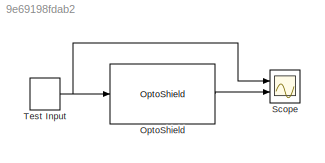
MODEL slx_9e69198fdab2
KIND model
CONFIG AbsTol = auto
CONFIG EnableMultiTasking = on
CONFIG FixedStep = 0.010
CONFIG MaxStep = auto
CONFIG MinStep = auto
CONFIG RelTol = 1e-3
CONFIG SampleTimeConstraint = Unconstrained
CONFIG Solver = FixedStepDiscrete
CONFIG SolverName = FixedStepDiscrete
CONFIG StartTime = 0.0
CONFIG StopTime = inf
BLOCK [Reference] OptoShield   REF=OptoLibrary/OptoShield
  Ports = [1, 1]
  SourceBlock = OptoLibrary/OptoShield
  SourceProductName = AutomationShield
BLOCK [Scope] Scope 
  Floating = off
  NumInputPorts = 2
  Ports = [2]
  ScopeSpecificationString = Simulink.scopes.TimeScopeBlockCfg('CurrentConfiguration', extmgr.ConfigurationSet(extmgr.Configuration('Core','General UI',true),extmgr.Configuration('Core','Source UI',true),extmgr.Configuration('Sources','WiredSimulink',true),extmgr.Configuration('Visuals','Time Domain',true,'SerializedDisplays',{struct('MinYLimReal','-9.66333','MaxYLimReal','97.43872','YLabelReal','','MinYLimMag','0.00000','Max...<+1354ch>
BLOCK [DiscretePulseGenerator] Test Input
  Amplitude = 60
  Period = 3
  Ports = [0, 1]
  PulseType = Time based
  PulseWidth = 50
LINE OptoShield :1 -> Scope :2
NET Test Input:1 -> OptoShield :1, Scope :1
note: NET lines group one-source signal fan-out (src -> all destinations, sorted); 1:1 wires keep LINE
